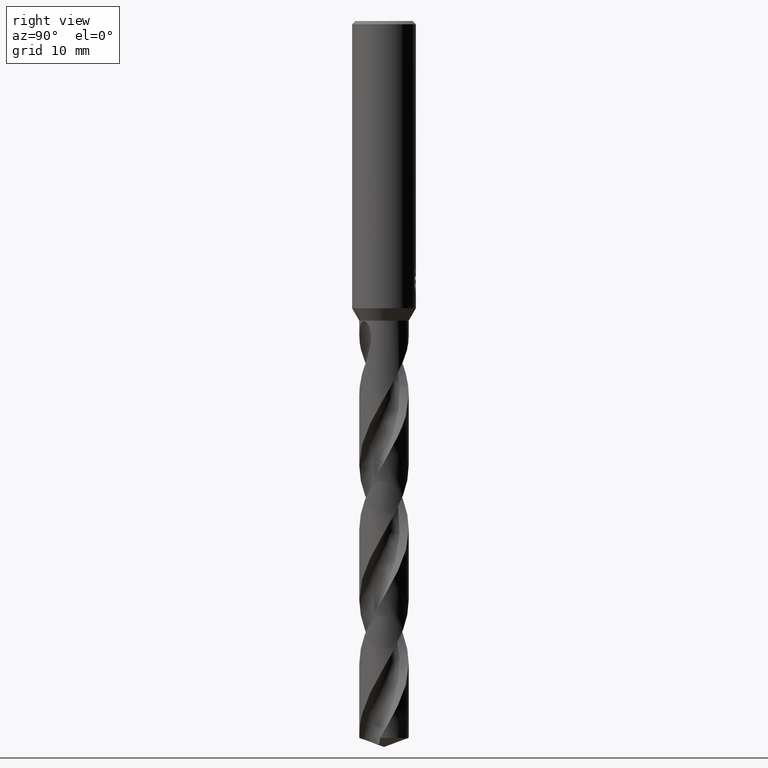
[diagram: clean part render]
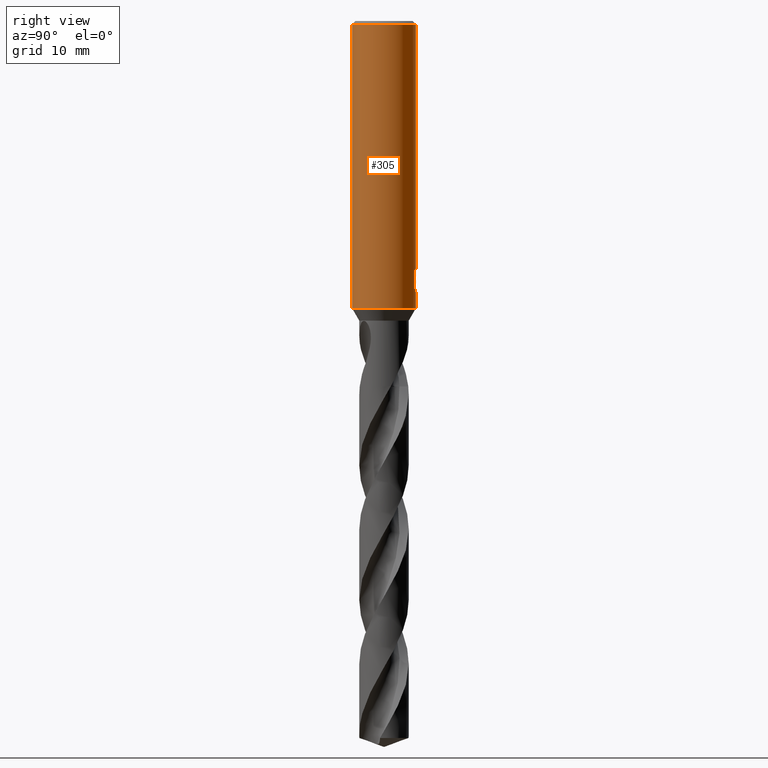
[diagram: same view with one face highlighted and labeled with its STEP entity id]
A machine part, right view. The second image highlights one B-rep face of the part: STEP entity #305.
In plain terms, the highlighted cylindrical surface (edge-blend (fillet) strip) has radius 4 mm, axis along (-0, -0, 1).
Its self-contained STEP definition (entity closure, byte-faithful):
#301=EDGE_CURVE('',#723,#739,#856,.T.);
#305=ADVANCED_FACE('',(#860),#861,.T.);
#355=VERTEX_POINT('',#914);
#369=VERTEX_POINT('',#930);
#381=VERTEX_POINT('',#944);
#383=EDGE_CURVE('',#411,#493,#946,.T.);
#385=VERTEX_POINT('',#948);
#403=EDGE_CURVE('',#385,#381,#968,.T.);
#411=VERTEX_POINT('',#977);
#433=VERTEX_POINT('',#1005);
#439=EDGE_CURVE('',#739,#563,#1012,.T.);
#493=VERTEX_POINT('',#1071);
#495=EDGE_CURVE('',#381,#369,#1073,.T.);
#533=EDGE_CURVE('',#723,#411,#1115,.T.);
#563=VERTEX_POINT('',#1149);
#585=EDGE_CURVE('',#493,#663,#1174,.T.);
#635=EDGE_CURVE('',#663,#385,#1228,.T.);
#663=VERTEX_POINT('',#1256);
#667=EDGE_CURVE('',#717,#433,#1260,.T.);
#717=VERTEX_POINT('',#1313);
#723=VERTEX_POINT('',#1320);
#739=VERTEX_POINT('',#1336);
#765=EDGE_CURVE('',#563,#355,#1365,.T.);
#811=EDGE_CURVE('',#369,#433,#1415,.T.);
#813=EDGE_CURVE('',#717,#355,#1417,.T.);
#856=LINE('',#1454,#1455);
#860=FACE_OUTER_BOUND('',#1579,.T.);
#861=CYLINDRICAL_SURFACE('',#1580,4.0);
#914=CARTESIAN_POINT('',(4.89842541528951E-016,-4.0,-0.399999999999999));
#930=CARTESIAN_POINT('',(0.799431726384364,3.91929954390451,-31.000000276873));
#944=CARTESIAN_POINT('',(1.33721006514658,3.76986329217263,-31.5150484364821));
#946=ELLIPSE('',#2920,12.1919782934791,4.0);
#948=CARTESIAN_POINT('',(1.33721006514658,3.76986329217263,-33.2901657003257));
#968=LINE('',#3089,#3090);
#977=CARTESIAN_POINT('',(0.29010312703583,3.98946615171554,-33.9998328990228));
#1005=CARTESIAN_POINT('',(0.0,4.0,-32.0232688117743));
#1012=CIRCLE('',#4891,4.0);
#1071=CARTESIAN_POINT('',(0.873560781758957,3.90344611344549,-32.3198931596091));
#1073=B_SPLINE_CURVE_WITH_KNOTS('',3,(#6515,#6516,#6517,#6518,#6519,#6520,#6521,#6522,#6523,#6524),.UNSPECIFIED.,.F.,.F.,(4,2,2,2,4),(0.621618550720989,0.932427826081483,1.24323710144198,1.55341597198189,1.8635948425218),.UNSPECIFIED.);
#1115=B_SPLINE_CURVE_WITH_KNOTS('',3,(#7315,#7316,#7317,#7318,#7319,#7320,#7321,#7322,#7323,#7324,#7325,#7326,#7327,#7328,#7329,#7330),.UNSPECIFIED.,.F.,.F.,(4,2,2,2,2,2,2,4),(5.59330412183837,6.21519943861119,6.52611580040833,6.83703216220547,7.14794852400261,7.45886488579976,7.76904377517712,8.07922266455448),.UNSPECIFIED.);
#1149=CARTESIAN_POINT('',(4.89842541528951E-016,-4.0,-36.0));
#1174=LINE('',#8262,#8263);
#1228=B_SPLINE_CURVE_WITH_KNOTS('',3,(#8595,#8596,#8597,#8598,#8599,#8600,#8601,#8602,#8603,#8604),.UNSPECIFIED.,.F.,.F.,(4,2,2,2,4),(8.07922159159579,8.38940045176896,8.69957931194214,9.01038857642139,9.32119784090064),.UNSPECIFIED.);
#1256=CARTESIAN_POINT('',(0.873560781758956,3.90344611344549,-33.7587351791531));
#1260=LINE('',#8920,#8921);
#1313=CARTESIAN_POINT('',(0.0,4.0,-0.399999999999999));
#1320=CARTESIAN_POINT('',(-6.37761657961682E-016,4.0,-34.0310253601033));
#1336=CARTESIAN_POINT('',(0.0,4.0,-36.0));
#1365=LINE('',#11013,#11014);
#1415=B_SPLINE_CURVE_WITH_KNOTS('',3,(#11591,#11592,#11593,#11594,#11595,#11596,#11597,#11598,#11599,#11600,#11601,#11602,#11603,#11604,#11605,#11606,#11607,#11608,#11609,#11610,#11611,#11612,#11613,#11614,#11615,#11616,#11617),.UNSPECIFIED.,.F.,.F.,(4,2,3,2,2,2,2,2,2,2,2,2,4),(-0.543018145553855,-0.271509072776928,0.0,0.271509072776927,0.543018145553855,0.815414280910791,1.08781041626773,1.35870467547365,1.62959893467958,1.90093601549038,2.17227309630118,2.44361017711198,2.71494725792278),.UNSPECIFIED.);
#1417=CIRCLE('',#11620,4.0);
#1454=CARTESIAN_POINT('',(-4.89842541528951E-016,4.0,-18.2));
#1455=VECTOR('',#11679,1.0);
#1579=EDGE_LOOP('',(#11681,#11682,#11683,#11684,#11685,#11686,#11687,#11688,#11689,#11690,#11691,#11692));
#1580=AXIS2_PLACEMENT_3D('',#11693,#11694,#11695);
#2920=AXIS2_PLACEMENT_3D('',#11765,#11766,#11767);
#3089=CARTESIAN_POINT('',(1.33721006514658,3.76986329217263,-32.4026070684039));
#3090=VECTOR('',#11792,1.0);
#4891=AXIS2_PLACEMENT_3D('',#11864,#11865,#11866);
#6515=CARTESIAN_POINT('',(1.47492143493287,3.71814560779639,-31.7759604553563));
#6516=CARTESIAN_POINT('',(1.43317985453682,3.73470372211652,-31.6758249567768));
#6517=CARTESIAN_POINT('',(1.38139934199221,3.7544274523428,-31.5801212011595));
#6518=CARTESIAN_POINT('',(1.26216864159784,3.79617175011376,-31.4033868968692));
#6519=CARTESIAN_POINT('',(1.1947060468711,3.8181497487877,-31.3223546663791));
#6520=CARTESIAN_POINT('',(1.0513319169546,3.86008660392055,-31.1790629248092));
#6521=CARTESIAN_POINT('',(0.970367433401024,3.88157055479408,-31.1117010969221));
#6522=CARTESIAN_POINT('',(0.793686081906958,3.92151314302242,-30.9925943353462));
#6523=CARTESIAN_POINT('',(0.697967348067752,3.93993643158254,-30.9408403180509));
#6524=CARTESIAN_POINT('',(0.597825544213158,3.95507327601983,-30.8991318677171));
#7315=CARTESIAN_POINT('',(-1.53169074080201,3.69512157777541,-33.0291469804961));
#7316=CARTESIAN_POINT('',(-1.44828662161398,3.72969396308271,-33.2292685117474));
#7317=CARTESIAN_POINT('',(-1.3235119204923,3.77766697431007,-33.4106519059977));
#7318=CARTESIAN_POINT('',(-1.10876972720289,3.84398770228913,-33.6255223555534));
#7319=CARTESIAN_POINT('',(-1.02784628500841,3.86675406900514,-33.6929304922165));
#7320=CARTESIAN_POINT('',(-0.851215741256186,3.9094356085587,-33.8121513963803));
#7321=CARTESIAN_POINT('',(-0.755506440008018,3.92931563110609,-33.8639734861066));
#7322=CARTESIAN_POINT('',(-0.55516132520436,3.96258844897707,-33.9475385932463));
#7323=CARTESIAN_POINT('',(-0.450345578096092,3.97598591776774,-33.9793474763458));
#7324=CARTESIAN_POINT('',(-0.238765831475676,3.99427916347003,-34.0212208804589));
#7325=CARTESIAN_POINT('',(-0.131998351317953,3.99916459194608,-34.0312723335086));
#7326=CARTESIAN_POINT('',(0.0750281946656646,4.00063255933723,-34.0312723335086));
#7327=CARTESIAN_POINT('',(0.181611397509719,3.99727906083033,-34.0212676362976));
#7328=CARTESIAN_POINT('',(0.392937729655654,3.98206259750675,-33.9795209106323));
#7329=CARTESIAN_POINT('',(0.497684032548134,3.97021008398904,-33.9477911393989));
#7330=CARTESIAN_POINT('',(0.597825841435798,3.9550732310934,-33.9060826866649));
#8262=CARTESIAN_POINT('',(0.873560781758957,3.90344611344549,-33.0393141693811));
#8263=VECTOR('',#12046,1.0);
#8595=CARTESIAN_POINT('',(0.597825566619951,3.95507327263295,-33.9060822529338));
#8596=CARTESIAN_POINT('',(0.69796736707036,3.93993642812991,-33.8643738039892));
#8597=CARTESIAN_POINT('',(0.793686097648071,3.92151313976681,-33.8126197884223));
#8598=CARTESIAN_POINT('',(0.970367443122637,3.8815705522933,-33.6935130308195));
#8599=CARTESIAN_POINT('',(1.05133192391794,3.86008660197544,-33.6261512051772));
#8600=CARTESIAN_POINT('',(1.19470604884202,3.81814974811935,-33.4828594684698));
#8601=CARTESIAN_POINT('',(1.26216864117972,3.79617175021539,-33.401827240791));
#8602=CARTESIAN_POINT('',(1.38139933735972,3.75442745400946,-33.2250929426288));
#8603=CARTESIAN_POINT('',(1.43317984807825,3.73470372457547,-33.1293891903286));
#8604=CARTESIAN_POINT('',(1.47492142700079,3.7181456109429,-33.0292536952238));
#8920=CARTESIAN_POINT('',(-4.89842541528951E-016,4.0,-18.2));
#8921=VECTOR('',#12091,1.0);
#11013=CARTESIAN_POINT('',(4.89842541528951E-016,-4.0,-18.2));
#11014=VECTOR('',#12185,1.0);
#11591=CARTESIAN_POINT('',(0.665279195004375,3.9442874632428,-30.8137529884524));
#11592=CARTESIAN_POINT('',(0.72877088492158,3.9335783806135,-30.8773526603125));
#11593=CARTESIAN_POINT('',(0.783944488018489,3.92260552826083,-30.957920893425));
#11594=CARTESIAN_POINT('',(0.857267073993339,3.90723639918054,-31.134802544027));
#11595=CARTESIAN_POINT('',(0.875400981188567,3.90303383563787,-31.2311389883278));
#11596=CARTESIAN_POINT('',(0.875400981188567,3.90303383563787,-31.3216420125868));
#11597=CARTESIAN_POINT('',(0.875400981188567,3.90303383563787,-31.4121450368458));
#11598=CARTESIAN_POINT('',(0.857267073993339,3.90723639918054,-31.5084814811466));
#11599=CARTESIAN_POINT('',(0.783944488018488,3.92260552826083,-31.6853631317485));
#11600=CARTESIAN_POINT('',(0.728770884921581,3.9335783806135,-31.765931364861));
#11601=CARTESIAN_POINT('',(0.601580067811904,3.95503153411898,-31.8933384986505));
#11602=CARTESIAN_POINT('',(0.520902117238449,3.96693827151805,-31.9487071231089));
#11603=CARTESIAN_POINT('',(0.343752086871948,3.98619778335453,-32.0223037477669));
#11604=CARTESIAN_POINT('',(0.247255556938652,3.99338316413851,-32.0405166027747));
#11605=CARTESIAN_POINT('',(0.0662974670001867,4.00046977119903,-32.0405166027747));
#11606=CARTESIAN_POINT('',(-0.0299674229107091,4.00086780861984,-32.0224830783564));
#11607=CARTESIAN_POINT('',(-0.206991592502204,3.99562207288533,-31.9491870835923));
#11608=CARTESIAN_POINT('',(-0.287758268875903,3.99014940483369,-31.8939303320089));
#11609=CARTESIAN_POINT('',(-0.415384305359873,3.97889009382894,-31.7664425414649));
#11610=CARTESIAN_POINT('',(-0.470753835570468,3.9723749730993,-31.6856442592887));
#11611=CARTESIAN_POINT('',(-0.544239101864661,3.96297563900076,-31.5084730190186));
#11612=CARTESIAN_POINT('',(-0.562348199187247,3.96027328638705,-31.4120877061904));
#11613=CARTESIAN_POINT('',(-0.562348199187247,3.96027328638705,-31.2311963189832));
#11614=CARTESIAN_POINT('',(-0.544239101864661,3.96297563900076,-31.134811006155));
#11615=CARTESIAN_POINT('',(-0.470753835570468,3.9723749730993,-30.9576397658849));
#11616=CARTESIAN_POINT('',(-0.415384305359873,3.97889009382894,-30.8768414837086));
#11617=CARTESIAN_POINT('',(-0.351519173230209,3.98452434687649,-30.8130455309993));
#11620=AXIS2_PLACEMENT_3D('',#12235,#12236,#12237);
#11679=DIRECTION('',(0.0,0.0,-1.0));
#11681=ORIENTED_EDGE('',*,*,#667,.F.);
#11682=ORIENTED_EDGE('',*,*,#813,.T.);
#11683=ORIENTED_EDGE('',*,*,#765,.F.);
#11684=ORIENTED_EDGE('',*,*,#439,.F.);
#11685=ORIENTED_EDGE('',*,*,#301,.F.);
#11686=ORIENTED_EDGE('',*,*,#533,.T.);
#11687=ORIENTED_EDGE('',*,*,#383,.T.);
#11688=ORIENTED_EDGE('',*,*,#585,.T.);
#11689=ORIENTED_EDGE('',*,*,#635,.T.);
#11690=ORIENTED_EDGE('',*,*,#403,.T.);
#11691=ORIENTED_EDGE('',*,*,#495,.T.);
#11692=ORIENTED_EDGE('',*,*,#811,.T.);
#11693=CARTESIAN_POINT('',(0.0,0.0,-18.2));
#11694=DIRECTION('',(-0.0,-0.0,1.0));
#11695=DIRECTION('',(0.0,1.0,0.0));
#11765=CARTESIAN_POINT('',(0.0,0.0,-34.8351219173269));
#11766=DIRECTION('',(0.944648353914092,0.0,-0.328084573619969));
#11767=DIRECTION('',(0.328084573619968,-0.0,0.944648353914092));
#11792=DIRECTION('',(-0.0,-0.0,1.0));
#11864=CARTESIAN_POINT('',(0.0,0.0,-36.0));
#11865=DIRECTION('',(0.0,0.0,-1.0));
#11866=DIRECTION('',(0.0,1.0,0.0));
#12046=DIRECTION('',(0.0,0.0,-1.0));
#12091=DIRECTION('',(0.0,0.0,-1.0));
#12185=DIRECTION('',(-0.0,-0.0,1.0));
#12235=CARTESIAN_POINT('',(0.0,0.0,-0.399999999999999));
#12236=DIRECTION('',(0.0,0.0,-1.0));
#12237=DIRECTION('',(0.0,1.0,0.0));